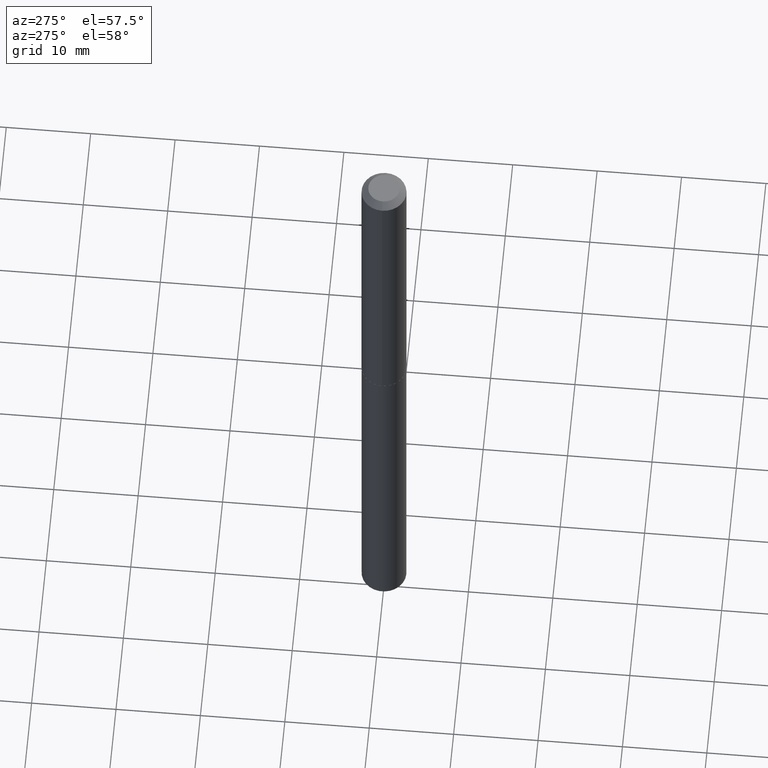
[diagram: clean part render]
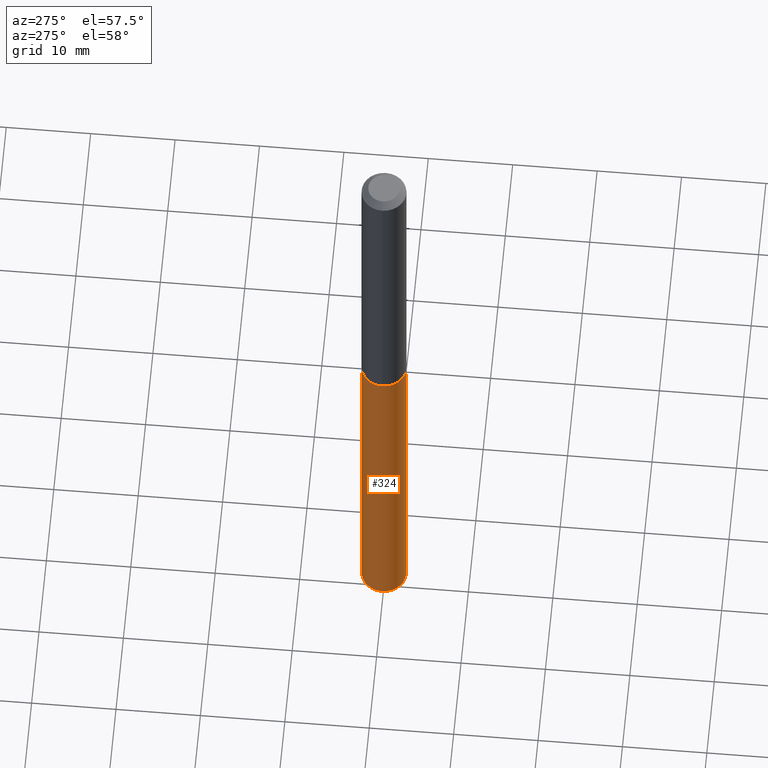
[diagram: same view with one face highlighted and labeled with its STEP entity id]
A machine part, auxiliary view. The second image highlights one B-rep face of the part: STEP entity #324.
In plain terms, the highlighted cylindrical surface (edge-blend (fillet) strip) has radius 2.6505 mm, axis along (-0, 0, 1).
Its self-contained STEP definition (entity closure, byte-faithful):
#7 = VERTEX_POINT ( 'NONE', #265 ) ;
#17 = CIRCLE ( 'NONE', #153, 0.1043499999999999844 ) ;
#45 = DIRECTION ( 'NONE',  ( -2.445422308860357196E-29, 3.491547925658693024E-15, 1.000000000000000000 ) ) ;
#49 = DIRECTION ( 'NONE',  ( -2.445422308860357196E-29, 3.491547925658693024E-15, 1.000000000000000000 ) ) ;
#52 = FACE_OUTER_BOUND ( 'NONE', #136, .T. ) ;
#73 = CARTESIAN_POINT ( 'NONE',  ( -7.286721554165238553E-16, -0.1043500000000053829, -1.547299999999999676 ) ) ;
#96 = EDGE_CURVE ( 'NONE', #314, #171, #190, .T. ) ;
#108 = EDGE_CURVE ( 'NONE', #7, #314, #383, .T. ) ;
#117 = CARTESIAN_POINT ( 'NONE',  ( 3.783873883810261606E-29, -5.402369075591998725E-15, -1.547299999999999898 ) ) ;
#121 = CARTESIAN_POINT ( 'NONE',  ( 7.414513447657022001E-16, 0.1043499999999945999, -1.547300000000000120 ) ) ;
#128 = ORIENTED_EDGE ( 'NONE', *, *, #96, .F. ) ;
#132 = VECTOR ( 'NONE', #378, 39.37007874015748143 ) ;
#136 = EDGE_LOOP ( 'NONE', ( #390, #388, #353, #128 ) ) ;
#138 = CARTESIAN_POINT ( 'NONE',  ( 8.126455295285522582E-29, -1.160266056074924409E-14, -3.323100194404474461 ) ) ;
#145 = DIRECTION ( 'NONE',  ( -6.982962677686265922E-15, -1.000000000000000000, 2.617966452960482631E-15 ) ) ;
#153 = AXIS2_PLACEMENT_3D ( 'NONE', #138, #45, #193 ) ;
#171 = VERTEX_POINT ( 'NONE', #73 ) ;
#178 = AXIS2_PLACEMENT_3D ( 'NONE', #296, #354, #278 ) ;
#180 = EDGE_CURVE ( 'NONE', #7, #285, #17, .T. ) ;
#190 = CIRCLE ( 'NONE', #178, 0.1043499999999999844 ) ;
#193 = DIRECTION ( 'NONE',  ( -6.982962677686265922E-15, -1.000000000000000000, 5.235932905920965262E-15 ) ) ;
#198 = CYLINDRICAL_SURFACE ( 'NONE', #384, 0.1043499999999999844 ) ;
#223 = CARTESIAN_POINT ( 'NONE',  ( -7.286721554164805666E-16, -0.1043500000000116140, -3.323100194404473573 ) ) ;
#243 = VECTOR ( 'NONE', #357, 39.37007874015748143 ) ;
#261 = CARTESIAN_POINT ( 'NONE',  ( -7.286721554165238553E-16, -0.1043500000000053829, -1.547299999999999676 ) ) ;
#265 = CARTESIAN_POINT ( 'NONE',  ( 7.414513447657457846E-16, 0.1043499999999883965, -3.323100194404474905 ) ) ;
#278 = DIRECTION ( 'NONE',  ( -6.982962677686265922E-15, -1.000000000000000000, 2.617966452960482631E-15 ) ) ;
#285 = VERTEX_POINT ( 'NONE', #223 ) ;
#296 = CARTESIAN_POINT ( 'NONE',  ( 3.783873883810261606E-29, -5.402369075591998725E-15, -1.547299999999999898 ) ) ;
#299 = LINE ( 'NONE', #261, #132 ) ;
#301 = EDGE_CURVE ( 'NONE', #285, #171, #299, .T. ) ;
#314 = VERTEX_POINT ( 'NONE', #349 ) ;
#324 = ADVANCED_FACE ( 'NONE', ( #52 ), #198, .T. ) ;
#349 = CARTESIAN_POINT ( 'NONE',  ( 7.414513447657459819E-16, 0.1043499999999945999, -1.547300000000000120 ) ) ;
#353 = ORIENTED_EDGE ( 'NONE', *, *, #301, .T. ) ;
#354 = DIRECTION ( 'NONE',  ( -2.445422308860357196E-29, 3.491547925658693024E-15, 1.000000000000000000 ) ) ;
#357 = DIRECTION ( 'NONE',  ( -2.445422308860357476E-29, 3.491547925658693418E-15, 1.000000000000000000 ) ) ;
#378 = DIRECTION ( 'NONE',  ( -2.445422308860357476E-29, 3.491547925658693418E-15, 1.000000000000000000 ) ) ;
#383 = LINE ( 'NONE', #121, #243 ) ;
#384 = AXIS2_PLACEMENT_3D ( 'NONE', #117, #49, #145 ) ;
#388 = ORIENTED_EDGE ( 'NONE', *, *, #180, .T. ) ;
#390 = ORIENTED_EDGE ( 'NONE', *, *, #108, .F. ) ;